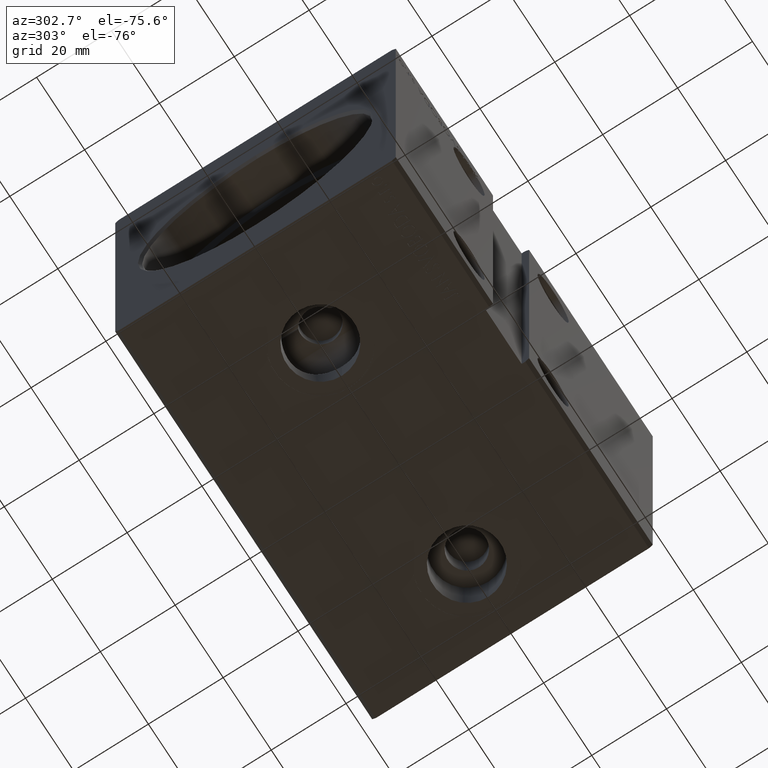
[diagram: clean part render]
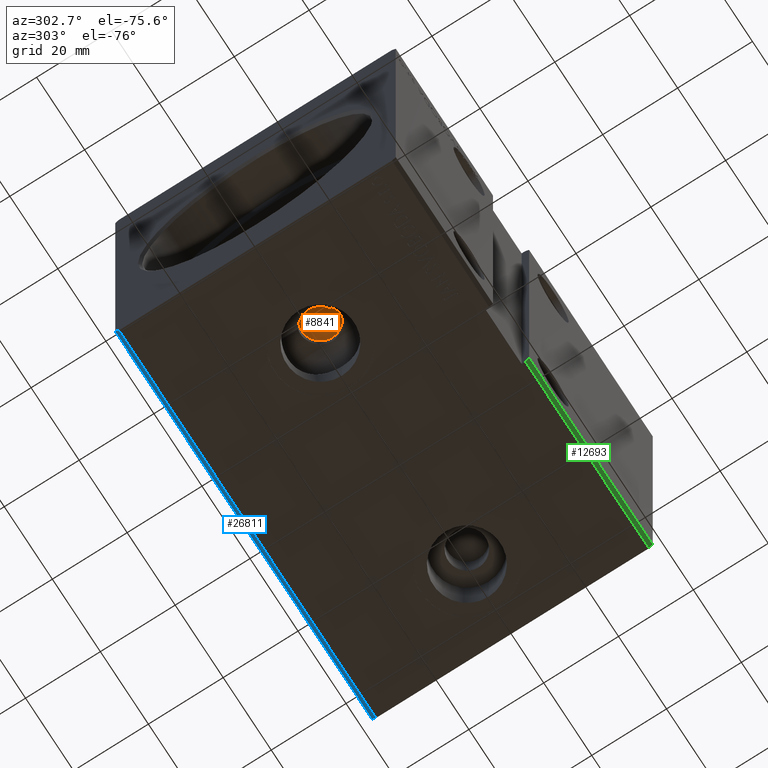
[diagram: same view with three faces highlighted in distinct colors, each labeled with its STEP entity id]
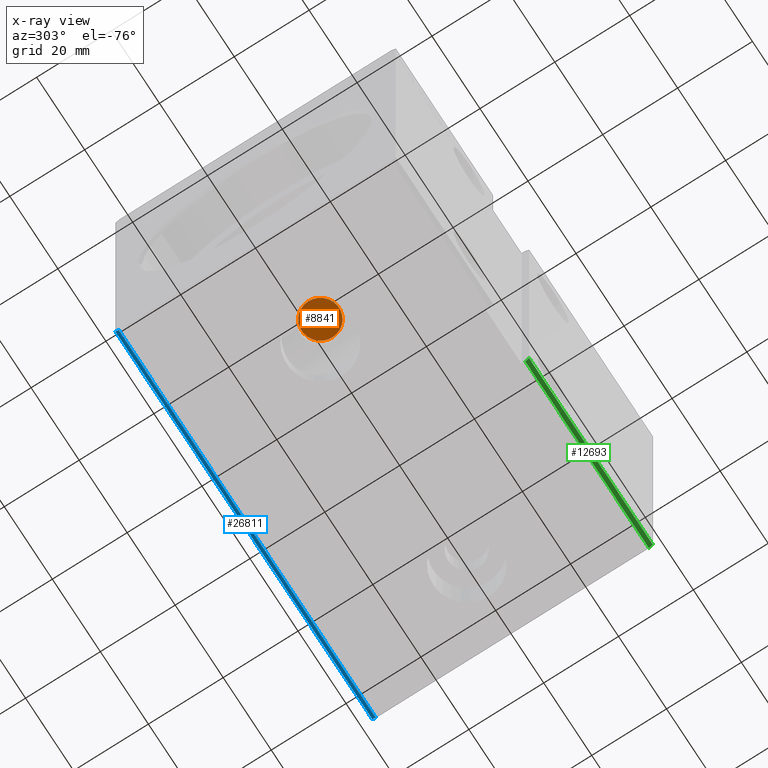
[diagram: x-ray of the same camera — body ghosted, the three highlighted faces saturated]
A machine part, auxiliary view with three faces highlighted in distinct colors.
The next image is the same camera in x-ray (body ghosted, the three faces saturated) — at least one of them is partly hidden behind the body in this view.
Their STEP definitions:

[orange] entity #8841 — the highlighted planar face has unit normal (0, 0, -1).
#922 = AXIS2_PLACEMENT_3D ( 'NONE', #32949, #27356, #14519 ) ;
#3955 = AXIS2_PLACEMENT_3D ( 'NONE', #30091, #20788, #36742 ) ;
#4735 = DIRECTION ( 'NONE',  ( -1.000000000000000000, 0.000000000000000000, -0.000000000000000000 ) ) ;
#5575 = EDGE_CURVE ( 'NONE', #26749, #22176, #14568, .T. ) ;
#5948 = CARTESIAN_POINT ( 'NONE',  ( 22.00000000000000000, -6.135200823405162107E-15, -28.40000000000000213 ) ) ;
#8841 = ADVANCED_FACE ( 'NONE', ( #26302 ), #29605, .T. ) ;
#12896 = CARTESIAN_POINT ( 'NONE',  ( 32.00000000000000000, -5.522877423831485577E-15, -28.40000000000000213 ) ) ;
#14519 = DIRECTION ( 'NONE',  ( -1.000000000000000000, 0.000000000000000000, 0.000000000000000000 ) ) ;
#14568 = CIRCLE ( 'NONE', #3955, 5.000000000000000888 ) ;
#16563 = DIRECTION ( 'NONE',  ( 0.000000000000000000, 0.000000000000000000, -1.000000000000000000 ) ) ;
#17958 = AXIS2_PLACEMENT_3D ( 'NONE', #20507, #16563, #4735 ) ;
#18210 = ORIENTED_EDGE ( 'NONE', *, *, #5575, .T. ) ;
#20507 = CARTESIAN_POINT ( 'NONE',  ( 0.000000000000000000, 0.000000000000000000, -28.40000000000000213 ) ) ;
#20788 = DIRECTION ( 'NONE',  ( 0.000000000000000000, 0.000000000000000000, -1.000000000000000000 ) ) ;
#22176 = VERTEX_POINT ( 'NONE', #12896 ) ;
#26302 = FACE_OUTER_BOUND ( 'NONE', #36235, .T. ) ;
#26749 = VERTEX_POINT ( 'NONE', #5948 ) ;
#27356 = DIRECTION ( 'NONE',  ( 0.000000000000000000, 0.000000000000000000, -1.000000000000000000 ) ) ;
#29605 = PLANE ( 'NONE',  #17958 ) ;
#30091 = CARTESIAN_POINT ( 'NONE',  ( 27.00000000000000000, -6.135200823405162107E-15, -28.40000000000000213 ) ) ;
#31211 = EDGE_CURVE ( 'NONE', #22176, #26749, #38656, .T. ) ;
#32920 = ORIENTED_EDGE ( 'NONE', *, *, #31211, .T. ) ;
#32949 = CARTESIAN_POINT ( 'NONE',  ( 27.00000000000000000, -6.135200823405162107E-15, -28.40000000000000213 ) ) ;
#36235 = EDGE_LOOP ( 'NONE', ( #18210, #32920 ) ) ;
#36742 = DIRECTION ( 'NONE',  ( -1.000000000000000000, 0.000000000000000000, 0.000000000000000000 ) ) ;
#38656 = CIRCLE ( 'NONE', #922, 5.000000000000000888 ) ;

[blue] entity #26811 — the highlighted planar face has unit normal (0, -0.7071, 0.7071).
#2604 = VERTEX_POINT ( 'NONE', #26009 ) ;
#2820 = DIRECTION ( 'NONE',  ( 0.000000000000000000, -0.7071067811865474617, -0.7071067811865474617 ) ) ;
#2838 = LINE ( 'NONE', #15488, #6258 ) ;
#4819 = VERTEX_POINT ( 'NONE', #31105 ) ;
#5330 = LINE ( 'NONE', #14652, #8332 ) ;
#6258 = VECTOR ( 'NONE', #28129, 1000.000000000000000 ) ;
#6349 = PLANE ( 'NONE',  #34219 ) ;
#7917 = CARTESIAN_POINT ( 'NONE',  ( 107.0000000000000000, 36.50000000000000711, -50.00000000000000000 ) ) ;
#7957 = CARTESIAN_POINT ( 'NONE',  ( 107.0000000000000000, 37.50000000000000711, -49.00000000000000000 ) ) ;
#8332 = VECTOR ( 'NONE', #39931, 1000.000000000000000 ) ;
#8926 = ORIENTED_EDGE ( 'NONE', *, *, #21850, .T. ) ;
#10219 = ORIENTED_EDGE ( 'NONE', *, *, #23525, .T. ) ;
#11079 = EDGE_CURVE ( 'NONE', #2604, #19658, #32982, .T. ) ;
#11522 = ORIENTED_EDGE ( 'NONE', *, *, #11079, .F. ) ;
#12769 = CARTESIAN_POINT ( 'NONE',  ( 107.0000000000000000, 36.50000000000000711, -50.00000000000000000 ) ) ;
#14652 = CARTESIAN_POINT ( 'NONE',  ( 107.0000000000000000, 36.50000000000000711, -50.00000000000000000 ) ) ;
#14834 = CARTESIAN_POINT ( 'NONE',  ( 0.000000000000000000, 36.50000000000000711, -50.00000000000000000 ) ) ;
#15488 = CARTESIAN_POINT ( 'NONE',  ( 107.0000000000000000, 37.50000000000000711, -49.00000000000000000 ) ) ;
#15883 = DIRECTION ( 'NONE',  ( 0.000000000000000000, -0.7071067811865475727, 0.7071067811865475727 ) ) ;
#18731 = VECTOR ( 'NONE', #20570, 1000.000000000000114 ) ;
#19658 = VERTEX_POINT ( 'NONE', #7957 ) ;
#20515 = EDGE_CURVE ( 'NONE', #19658, #4819, #2838, .T. ) ;
#20558 = ORIENTED_EDGE ( 'NONE', *, *, #20515, .F. ) ;
#20570 = DIRECTION ( 'NONE',  ( 0.000000000000000000, 0.7071067811865474617, 0.7071067811865474617 ) ) ;
#21276 = DIRECTION ( 'NONE',  ( 0.000000000000000000, 0.7071067811865474617, 0.7071067811865474617 ) ) ;
#21850 = EDGE_CURVE ( 'NONE', #25036, #4819, #28090, .T. ) ;
#23525 = EDGE_CURVE ( 'NONE', #2604, #25036, #5330, .T. ) ;
#25036 = VERTEX_POINT ( 'NONE', #38551 ) ;
#26009 = CARTESIAN_POINT ( 'NONE',  ( 107.0000000000000000, 36.50000000000000711, -50.00000000000000000 ) ) ;
#26811 = ADVANCED_FACE ( 'NONE', ( #31207 ), #6349, .F. ) ;
#28090 = LINE ( 'NONE', #14834, #32747 ) ;
#28129 = DIRECTION ( 'NONE',  ( -1.000000000000000000, -0.000000000000000000, -0.000000000000000000 ) ) ;
#29894 = EDGE_LOOP ( 'NONE', ( #8926, #20558, #11522, #10219 ) ) ;
#31105 = CARTESIAN_POINT ( 'NONE',  ( 0.000000000000000000, 37.50000000000000711, -49.00000000000000000 ) ) ;
#31207 = FACE_OUTER_BOUND ( 'NONE', #29894, .T. ) ;
#32747 = VECTOR ( 'NONE', #21276, 1000.000000000000114 ) ;
#32982 = LINE ( 'NONE', #7917, #18731 ) ;
#34219 = AXIS2_PLACEMENT_3D ( 'NONE', #12769, #15883, #2820 ) ;
#38551 = CARTESIAN_POINT ( 'NONE',  ( 0.000000000000000000, 36.50000000000000711, -50.00000000000000000 ) ) ;
#39931 = DIRECTION ( 'NONE',  ( -1.000000000000000000, -0.000000000000000000, -0.000000000000000000 ) ) ;

[green] entity #12693 — the highlighted planar face has unit normal (-0, 0.7071, 0.7071).
#3120 = VECTOR ( 'NONE', #17505, 1000.000000000000114 ) ;
#3383 = DIRECTION ( 'NONE',  ( -1.000000000000000000, -0.000000000000000000, -0.000000000000000000 ) ) ;
#5180 = VERTEX_POINT ( 'NONE', #32014 ) ;
#6277 = CARTESIAN_POINT ( 'NONE',  ( 107.0000000000000000, -36.50000000000000711, -50.00000000000000000 ) ) ;
#10628 = FACE_OUTER_BOUND ( 'NONE', #22830, .T. ) ;
#10886 = VECTOR ( 'NONE', #3383, 1000.000000000000000 ) ;
#12368 = CARTESIAN_POINT ( 'NONE',  ( 107.0000000000000000, -36.50000000000000711, -50.00000000000000000 ) ) ;
#12693 = ADVANCED_FACE ( 'NONE', ( #10628 ), #20171, .F. ) ;
#13753 = ORIENTED_EDGE ( 'NONE', *, *, #14686, .F. ) ;
#14686 = EDGE_CURVE ( 'NONE', #30657, #28442, #34665, .T. ) ;
#15469 = AXIS2_PLACEMENT_3D ( 'NONE', #16846, #21154, #27564 ) ;
#16660 = CARTESIAN_POINT ( 'NONE',  ( 55.50000000000002132, -37.50000000000001421, -48.99999999999997158 ) ) ;
#16846 = CARTESIAN_POINT ( 'NONE',  ( 107.0000000000000000, -37.50000000000001421, -49.00000000000000000 ) ) ;
#17505 = DIRECTION ( 'NONE',  ( 1.471961680016034242E-16, 0.7071067811865499042, -0.7071067811865451302 ) ) ;
#18932 = DIRECTION ( 'NONE',  ( -1.000000000000000000, -0.000000000000000000, -0.000000000000000000 ) ) ;
#19607 = VERTEX_POINT ( 'NONE', #16660 ) ;
#20171 = PLANE ( 'NONE',  #15469 ) ;
#20916 = ORIENTED_EDGE ( 'NONE', *, *, #30864, .T. ) ;
#21154 = DIRECTION ( 'NONE',  ( -0.000000000000000000, 0.7071067811865451302, 0.7071067811865499042 ) ) ;
#22197 = CARTESIAN_POINT ( 'NONE',  ( 55.50000000000002132, -36.50000000000000711, -50.00000000000000000 ) ) ;
#22830 = EDGE_LOOP ( 'NONE', ( #20916, #35407, #13753, #33424 ) ) ;
#24121 = VECTOR ( 'NONE', #18932, 1000.000000000000000 ) ;
#27039 = EDGE_CURVE ( 'NONE', #19607, #28442, #33238, .T. ) ;
#27564 = DIRECTION ( 'NONE',  ( 0.000000000000000000, -0.7071067811865499042, 0.7071067811865451302 ) ) ;
#28442 = VERTEX_POINT ( 'NONE', #22197 ) ;
#28672 = LINE ( 'NONE', #31362, #10886 ) ;
#30178 = VECTOR ( 'NONE', #32981, 1000.000000000000114 ) ;
#30657 = VERTEX_POINT ( 'NONE', #12368 ) ;
#30864 = EDGE_CURVE ( 'NONE', #5180, #19607, #28672, .T. ) ;
#31362 = CARTESIAN_POINT ( 'NONE',  ( 107.0000000000000000, -37.50000000000001421, -49.00000000000000000 ) ) ;
#32014 = CARTESIAN_POINT ( 'NONE',  ( 107.0000000000000000, -37.50000000000001421, -49.00000000000000000 ) ) ;
#32981 = DIRECTION ( 'NONE',  ( 0.000000000000000000, 0.7071067811865500152, -0.7071067811865451302 ) ) ;
#33238 = LINE ( 'NONE', #36155, #3120 ) ;
#33390 = LINE ( 'NONE', #39827, #30178 ) ;
#33424 = ORIENTED_EDGE ( 'NONE', *, *, #37471, .F. ) ;
#34665 = LINE ( 'NONE', #6277, #24121 ) ;
#35407 = ORIENTED_EDGE ( 'NONE', *, *, #27039, .T. ) ;
#36155 = CARTESIAN_POINT ( 'NONE',  ( 55.50000000000002132, -37.50000000000000711, -49.00000000000000711 ) ) ;
#37471 = EDGE_CURVE ( 'NONE', #5180, #30657, #33390, .T. ) ;
#39827 = CARTESIAN_POINT ( 'NONE',  ( 107.0000000000000000, -37.50000000000001421, -49.00000000000000000 ) ) ;